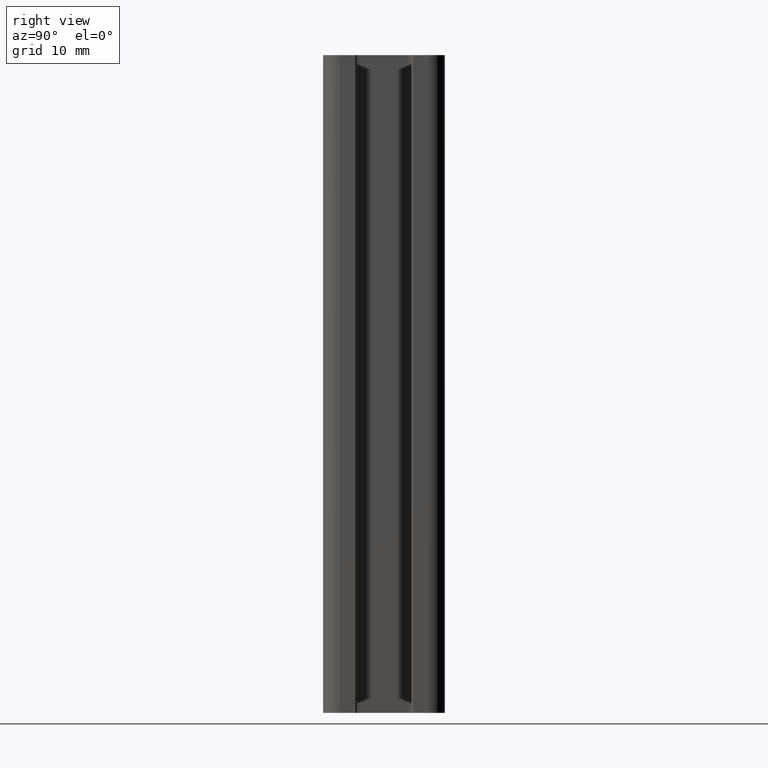
[diagram: clean part render]
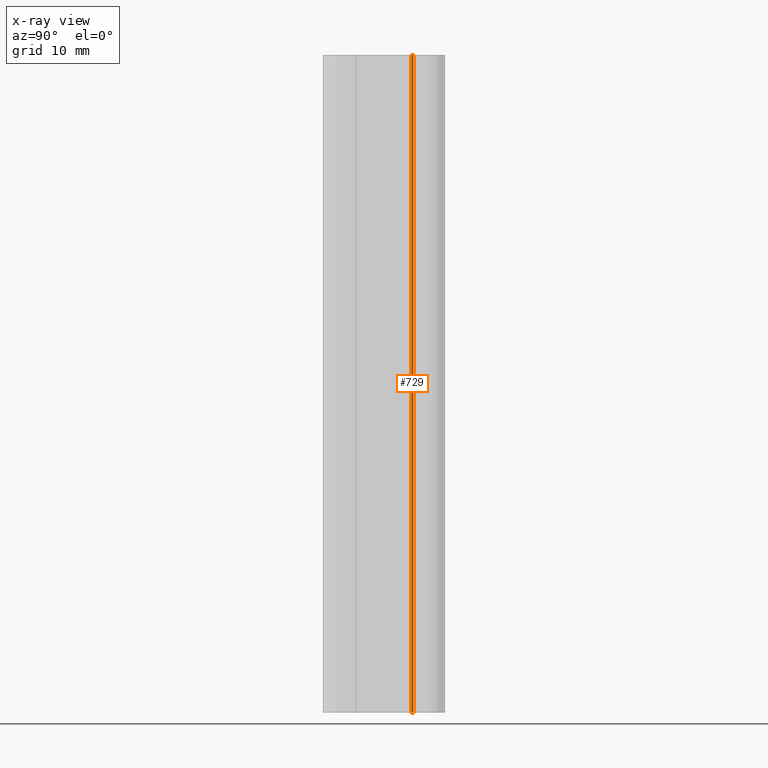
[diagram: x-ray — body ghosted, one internal face saturated and labeled with its STEP entity id]
A machine part, right view, then the same camera in x-ray: the body is ghosted and one INTERNAL B-rep face — a face not visible from any outside direction — is saturated and labeled: STEP entity #729.
In plain terms, the highlighted cylindrical surface (edge-blend (fillet) strip) has radius 0.3 mm, axis along (0, 0, 1).
Its self-contained STEP definition (entity closure, byte-faithful):
#37=LINE('',#1077,#113);
#38=LINE('',#1080,#114);
#113=VECTOR('',#854,100.);
#114=VECTOR('',#857,100.);
#193=FACE_OUTER_BOUND('',#233,.T.);
#233=EDGE_LOOP('',(#493,#494,#495,#496));
#275=CIRCLE('',#773,0.299999999999404);
#276=CIRCLE('',#774,0.299999999999404);
#309=VERTEX_POINT('',#1073);
#310=VERTEX_POINT('',#1074);
#311=VERTEX_POINT('',#1076);
#312=VERTEX_POINT('',#1078);
#383=EDGE_CURVE('',#309,#310,#275,.T.);
#384=EDGE_CURVE('',#309,#311,#37,.T.);
#385=EDGE_CURVE('',#312,#311,#276,.T.);
#386=EDGE_CURVE('',#312,#310,#38,.T.);
#493=ORIENTED_EDGE('',*,*,#383,.F.);
#494=ORIENTED_EDGE('',*,*,#384,.T.);
#495=ORIENTED_EDGE('',*,*,#385,.F.);
#496=ORIENTED_EDGE('',*,*,#386,.T.);
#712=CYLINDRICAL_SURFACE('',#772,0.299999999999404);
#729=ADVANCED_FACE('',(#193),#712,.T.);
#772=AXIS2_PLACEMENT_3D('',#1072,#850,#851);
#773=AXIS2_PLACEMENT_3D('',#1075,#852,#853);
#774=AXIS2_PLACEMENT_3D('',#1079,#855,#856);
#850=DIRECTION('center_axis',(0.,0.,1.));
#851=DIRECTION('ref_axis',(1.,-2.22044604925486E-14,0.));
#852=DIRECTION('center_axis',(0.,0.,1.));
#853=DIRECTION('ref_axis',(1.,-2.22044604925486E-14,0.));
#854=DIRECTION('',(0.,0.,-1.));
#855=DIRECTION('center_axis',(0.,0.,-1.));
#856=DIRECTION('ref_axis',(1.,-2.22044604925486E-14,0.));
#857=DIRECTION('',(0.,0.,1.));
#1072=CARTESIAN_POINT('Origin',(-22.1999999999994,4.44999999999941,0.));
#1073=CARTESIAN_POINT('',(-22.4999999999988,4.44999999999942,100.));
#1074=CARTESIAN_POINT('',(-22.2,4.15000000000001,100.));
#1075=CARTESIAN_POINT('Origin',(-22.1999999999994,4.44999999999941,100.));
#1076=CARTESIAN_POINT('',(-22.4999999999988,4.44999999999942,0.));
#1077=CARTESIAN_POINT('',(-22.5,4.44999999999941,0.));
#1078=CARTESIAN_POINT('',(-22.2,4.15000000000001,0.));
#1079=CARTESIAN_POINT('Origin',(-22.1999999999994,4.44999999999941,0.));
#1080=CARTESIAN_POINT('',(-22.2,4.15000000000001,0.));